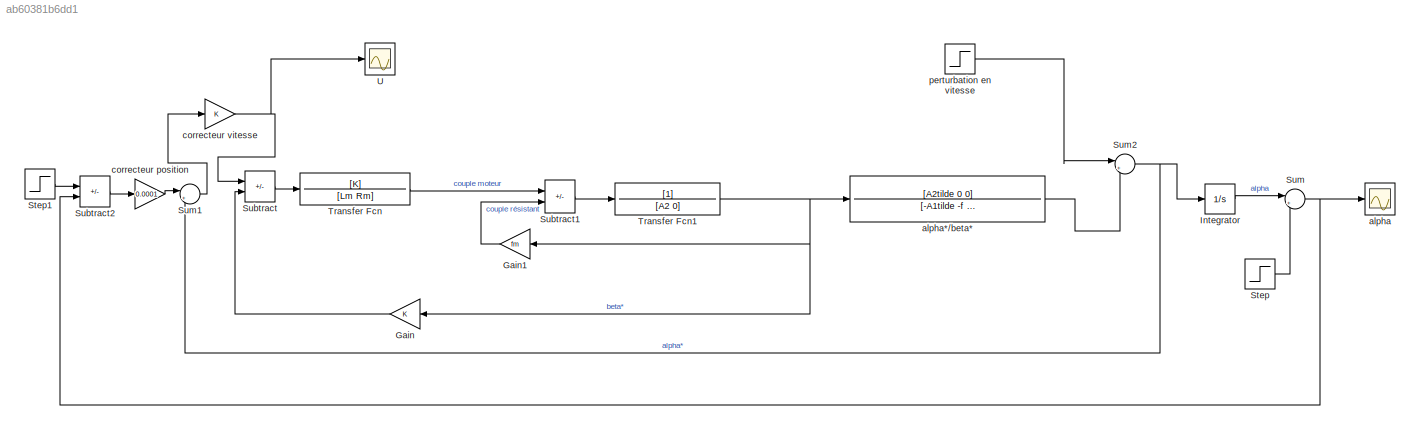
MODEL slx_ab60381b6dd1
KIND model
CONFIG AbsTol = auto
CONFIG EnableMultiTasking = off
CONFIG FixedStep = auto
CONFIG InitFcn = Rm=3.15;\nLm=0.0015;\nK=1.028;\nfm=0.16805;\nA2=0.0033153;\nA1=0.045721;\nL01=0.2625;\nm2=0.24355;\nA1tilde=A1+A2+m2*L01*L01;\nA2tilde=A1tilde-A2;\nf=0.070633;\nlg1=0.16655703376925832;\nm1=0.66984;\ng=9.8;\nCeq=L01*m2*g+lg1*m1*g;
CONFIG MaxStep = auto
CONFIG MinStep = auto
CONFIG RelTol = 1e-3
CONFIG SampleTimeConstraint = Unconstrained
CONFIG SolverName = VariableStepAuto
CONFIG StartTime = 0.0
CONFIG StopTime = 15
BLOCK [Gain] Gain
  Gain = K
  NameLocation = top
BLOCK [Gain] Gain1
  Gain = fm
  NameLocation = top
BLOCK [Integrator] Integrator
BLOCK [Step] Step
  After = 0
  SampleTime = 0
  Time = 0.01
BLOCK [Step] Step1
  After = 0
  SampleTime = 0
  Time = 10
BLOCK [Sum] Subtract
  IconShape = rectangular
  Inputs = +-
BLOCK [Sum] Subtract1
  IconShape = rectangular
  Inputs = +-
BLOCK [Sum] Subtract2
  IconShape = rectangular
  Inputs = +-
BLOCK [Sum] Sum
  Inputs = |++
BLOCK [Sum] Sum1
  Inputs = |++
BLOCK [Sum] Sum2
  Inputs = |++
BLOCK [TransferFcn] Transfer Fcn
  Denominator = [Lm Rm]
  Numerator = [K]
BLOCK [TransferFcn] Transfer Fcn1
  Denominator = [A2 0]
BLOCK [Scope] U
  Floating = off
  NumInputPorts = 1
  ScopeSpecificationString = Simulink.scopes.TimeScopeBlockCfg('CurrentConfiguration', extmgr.ConfigurationSet(extmgr.Configuration('Core','General UI',true),extmgr.Configuration('Core','Source UI',true),extmgr.Configuration('Sources','WiredSimulink',true,'DataLoggingVariableName','ScopeData1'),extmgr.Configuration('Visuals','Time Domain',true,'SerializedDisplays',{struct('MinYLimReal','-0.62948','MaxYLimReal','1.35272','YLab...<+1406ch>
BLOCK [Scope] alpha
  Floating = off
  NumInputPorts = 1
  ScopeSpecificationString = Simulink.scopes.TimeScopeBlockCfg('CurrentConfiguration', extmgr.ConfigurationSet(extmgr.Configuration('Core','General UI',true),extmgr.Configuration('Core','Source UI',true),extmgr.Configuration('Sources','WiredSimulink',true),extmgr.Configuration('Visuals','Time Domain',true,'SerializedDisplays',{struct('MinYLimReal','-0.12548','MaxYLimReal','1.20444','YLabelReal','','MinYLimMag','0.00000','MaxY...<+1371ch>
BLOCK [TransferFcn] alpha*//beta*
  Denominator = [-A1tilde -f -Ceq]
  Numerator = [A2tilde 0 0]
BLOCK [Gain] correcteur position
  Gain = 0.0001
BLOCK [Gain] correcteur vitesse
BLOCK [Step] perturbation en vitesse
  After = 0
  Before = 1
  SampleTime = 0
  Time = 0.5
LINE Gain1:1 -> Subtract1:2
LINE Gain:1 -> Subtract:2
LINE Integrator:1 -> Sum:1
LINE Step1:1 -> Subtract2:1
LINE Step:1 -> Sum:2
LINE Subtract1:1 -> Transfer Fcn1:1
LINE Subtract2:1 -> correcteur position:1
LINE Subtract:1 -> Transfer Fcn:1
LINE Sum1:1 -> correcteur vitesse:1
NET Sum2:1 -> Integrator:1, Sum1:2
NET Sum:1 -> Subtract2:2, alpha:1
NET Transfer Fcn1:1 -> Gain1:1, Gain:1, alpha*//beta*:1
LINE Transfer Fcn:1 -> Subtract1:1
LINE alpha*//beta*:1 -> Sum2:2
LINE correcteur position:1 -> Sum1:1
NET correcteur vitesse:1 -> Subtract:1, U:1
LINE perturbation en vitesse:1 -> Sum2:1
note: NET lines group one-source signal fan-out (src -> all destinations, sorted); 1:1 wires keep LINE
